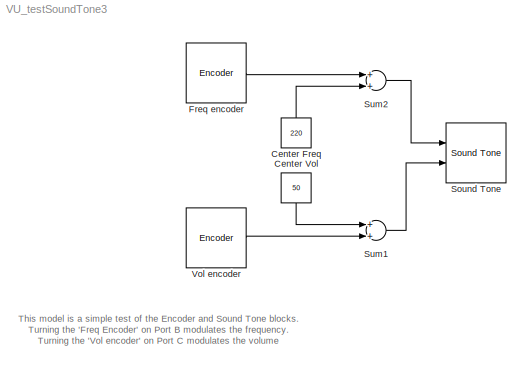
MODEL VU_testSoundTone3
KIND model
BLOCK [Constant] Center Freq
  OutDataType = fixdt(1, 16)
  OutScaling = 2^0
  SID = 44
  Value = 220
BLOCK [Constant] Center Vol
  OutDataType = fixdt(1, 16)
  OutScaling = 2^0
  SID = 48
  Value = 50
BLOCK [Reference] Freq encoder  REF=lego_nxt_lib/Encoder  (lib defined in mdl_3d9a4c0387f8)
  Ports = [0, 1]
  SID = 42
  SourceBlock = lego_nxt_lib/Encoder
  SourceType = Encoder
  port = Port B
  st = 0.1
BLOCK [Reference] Sound Tone  REF=lego_nxt_lib/Sound Tone  (lib defined in mdl_3d9a4c0387f8)
  FunctionWithSeparateData = off
  Ports = [2]
  RTWMemSecDataConstants = Inherit from model
  RTWMemSecDataInternal = Inherit from model
  RTWMemSecDataParameters = Inherit from model
  RTWMemSecFuncExecute = Inherit from model
  RTWMemSecFuncInitTerm = Inherit from model
  SID = 36
  ShowPortLabels = FromPortIcon
  SourceBlock = lego_nxt_lib/Sound Tone
  SourceType = Sound Tone
  SystemSampleTime = -1
  freq = 220
  freqsrc = External
  vol = 70
  volsrc = External
BLOCK [Sum] Sum1
  InputSameDT = off
  OutDataType = fixdt(1, 16)
  OutDataTypeMode = uint8
  OutDataTypeStr = uint8
  OutScaling = 2^0
  Ports = [2, 1]
  SID = 47
  SaturateOnIntegerOverflow = off
BLOCK [Sum] Sum2
  InputSameDT = off
  OutDataType = fixdt(1, 16)
  OutDataTypeMode = uint32
  OutDataTypeStr = uint32
  OutScaling = 2^0
  Ports = [2, 1]
  SID = 45
  SaturateOnIntegerOverflow = off
BLOCK [Reference] Vol encoder  REF=lego_nxt_lib/Encoder  (lib defined in mdl_3d9a4c0387f8)
  Ports = [0, 1]
  SID = 43
  SourceBlock = lego_nxt_lib/Encoder
  SourceType = Encoder
  port = Port C
  st = 0.1
ANNOTATION (root): This model is a simple test of the Encoder and Sound Tone blocks.\nTurning the 'Freq Encoder' on Port B modulates the frequency. \nTurning the 'Vol encoder' on Port C modulates the volume
LINE Center Freq:1 -> Sum2:2
LINE Center Vol:1 -> Sum1:1
LINE Freq encoder:1 -> Sum2:1
LINE Sum1:1 -> Sound Tone:2
LINE Sum2:1 -> Sound Tone:1
LINE Vol encoder:1 -> Sum1:2
